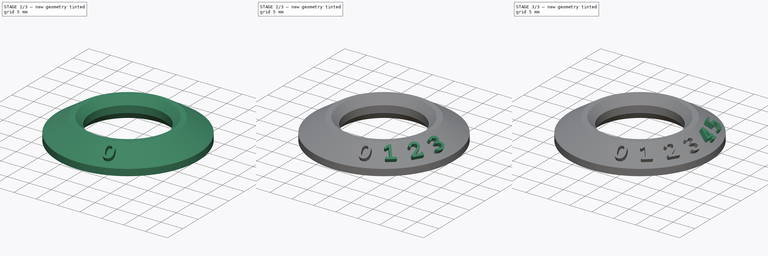
[diagram: build sequence overview — one tinted view per stage of 3, left to right]
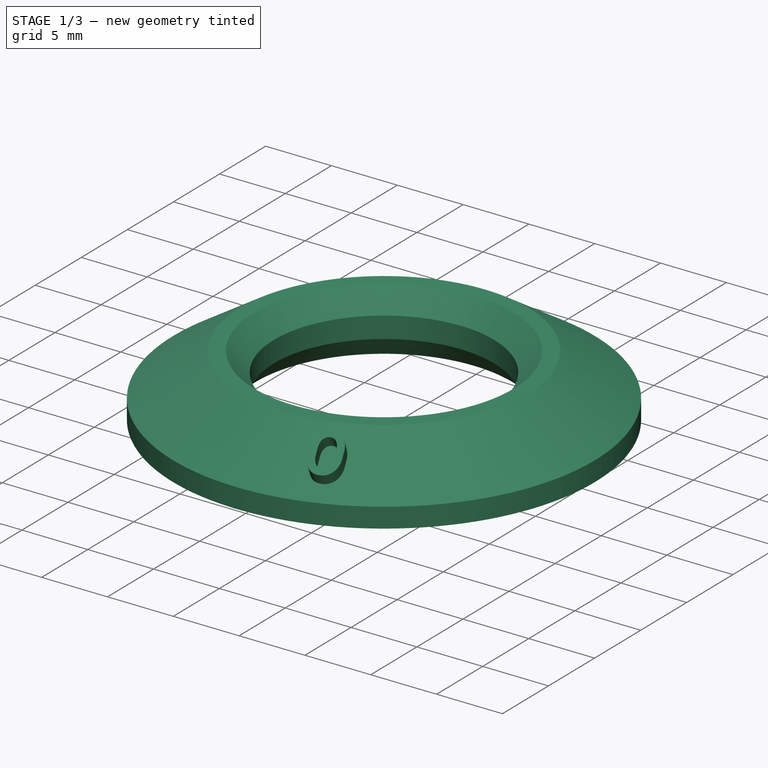
[diagram: stage 1 of 3 — iso view after this stage's code; geometry added in this stage tinted green]
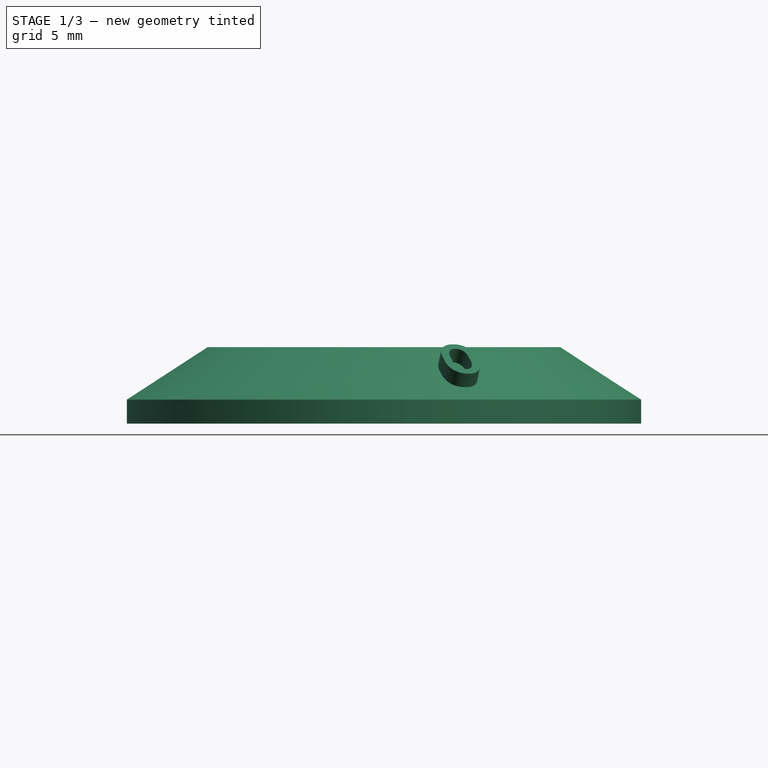
[diagram: stage 1 of 3 — front view after this stage's code; geometry added in this stage tinted green]
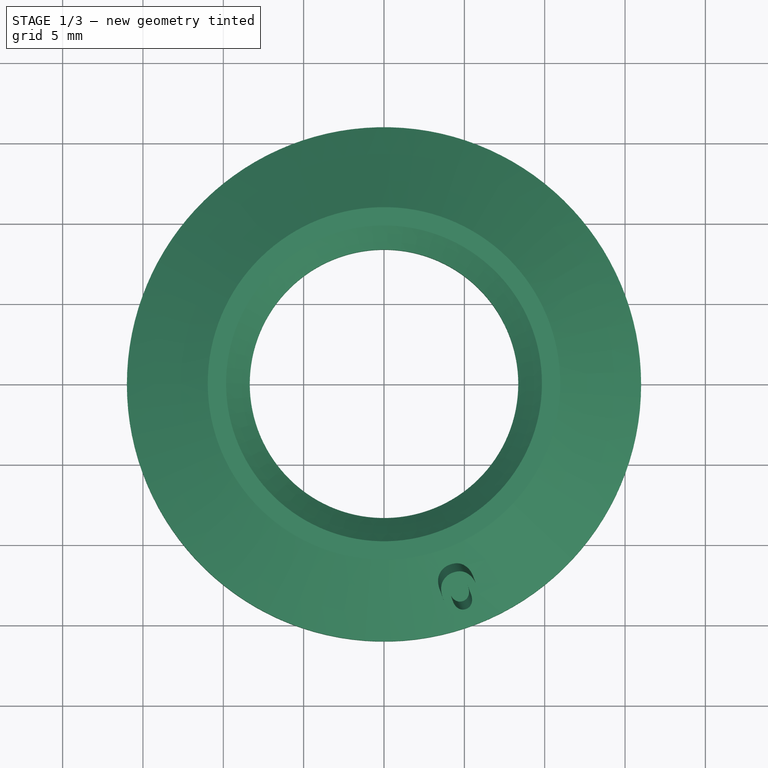
[diagram: stage 1 of 3 — top view after this stage's code; geometry added in this stage tinted green]
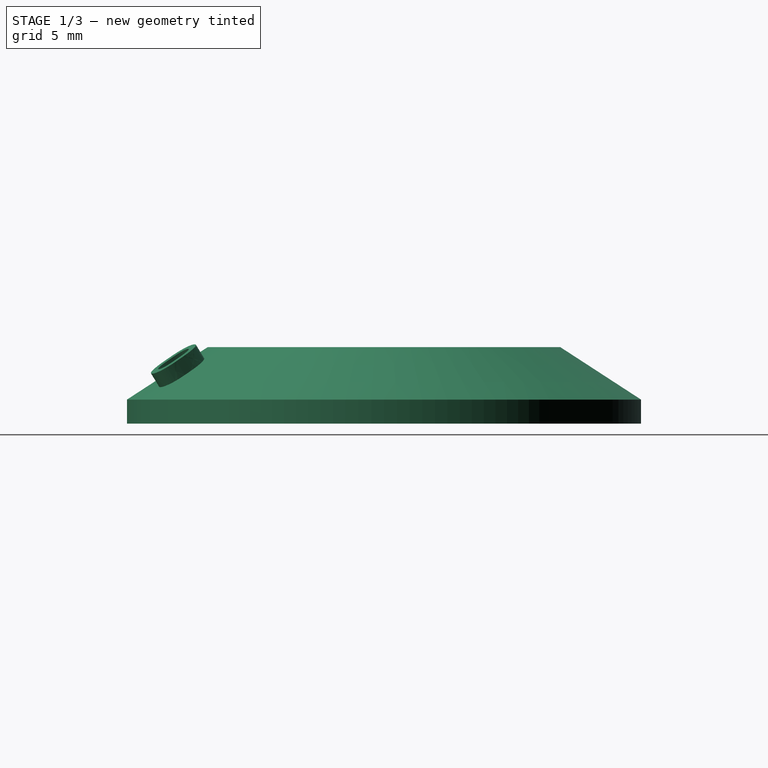
[diagram: stage 1 of 3 — right view after this stage's code; geometry added in this stage tinted green]
FCSTD DOCUMENT  (FreeCAD 1.0R39319 (Git))
Label: text-rotate
License: All rights reserved
LicenseURL: https://en.wikipedia.org/wiki/All_rights_reserved
objects: PartDesign::CoordinateSystem×6, Part::Part2DObjectPython×6, PartDesign::Pad×6, Sketcher::SketchObject×1, PartDesign::Revolution×1, PartDesign::Body×1
note: 36 computed .brp shape members not serialized (recipe doc carries the construction recipe); baked Part::Feature solids carry a one-line shape summary decoded from their .brp

FEATURE [Sketcher::SketchObject] Sketch
  ArcFitTolerance = 1e-06
  AttachmentSupport = -> [XZ_Plane]
  FullyConstrained = true
  MakeInternals = false
  MapMode = 5
  Placement = pos=(0,0,0) rot=(1,0,0;1.5708rad)
  sketch-geometry (9):
    g0: LineSegment StartX=-16 StartY=0 StartZ=0 EndX=-16 EndY=1.5 EndZ=0
    g1: LineSegment StartX=-16 StartY=1.5 StartZ=0 EndX=-10.968 EndY=4.76783 EndZ=0
    g2: LineSegment StartX=-10.968 StartY=4.76783 StartZ=0 EndX=-9.82798 EndY=4.76783 EndZ=0
    g3: LineSegment StartX=-9.82798 StartY=4.76783 StartZ=0 EndX=-8.35607 EndY=3.27001 EndZ=0
    g4: LineSegment StartX=-8.35607 StartY=3.27001 StartZ=0 EndX=-8.35607 EndY=1.66122 EndZ=0
    g5: LineSegment StartX=-8.35607 StartY=1.66122 StartZ=0 EndX=-9.75 EndY=0 EndZ=0
    g6: LineSegment StartX=-9.75 StartY=0 StartZ=0 EndX=-16 EndY=0 EndZ=0
    g7: GeomPoint X=-13.484 Y=3.13392 Z=0
    g8: LineSegment [constr] StartX=-13.484 StartY=3.13392 StartZ=0 EndX=-14.0286 EndY=3.97259 EndZ=0
  constraints (27):
    c: PointOnObject(g0,g-1)
    c: Vertical(g0)
    c: Coincident(g1,g2)
    c: Horizontal(g2)
    c: Coincident(g2,g3)
    c: Coincident(g3,g4)
    c: Vertical(g4)
    c: Coincident(g4,g5)
    c: PointOnObject(g5,g-1)
    c: Coincident(g5,g6)
    c: Coincident(g6,g0)
    c: DistanceX(g6,g6) = 6.25
    c: DistanceX(g0,g-1) = 16
    c: Distance(g3,g3) = 2.1
    c: Angle(g4,g5) = 2.44346
    c: Distance(g1,g1) = 6
    c: Angle(g2,g3) = 2.34747
    c: DistanceX(g2,g2) = 1.14
    c: DistanceY(g0,g0) = 1.5
    c: Angle(g1) = 0.575959
    c: Symmetric(g1,g1,g7)
    c: Symmetric(g1,g0,g7)
    c: Coincident(g8,g7)
    c: Perpendicular(g1,g8)
    c: Distance(g8) = 1
    c: DistanceX(g8) = -14.0286
    c: DistanceY(g8) = 3.97259
FEATURE [PartDesign::Revolution] Revolution
  Angle = 360
  Angle2 = 60
  Axis = (0,2e-16,1)
  Base = (0,0,0)
  Placement = pos=(0,0,0) rot=(1,0,0;1.5708rad)
  Profile = -> Sketch
  ReferenceAxis = -> Sketch [V_Axis]
  Refine = true
  Suppressed = false
  Type = 0
FEATURE [PartDesign::CoordinateSystem] Local_CS
  AttacherType = Attacher::AttachEngine3D
  MapMode = 1
  Placement = pos=(0,0,0) rot=(0,0,1;0.349066rad)
FEATURE [Part::Part2DObjectPython] ShapeString  label="0"  # Draft 2D object (typed FeaturePython)
  AttacherType = Attacher::AttachEngine3D
  AttachmentOffset = pos=(0,-14.03,3.97) rot=(1,0,0;0.575959rad)
  AttachmentSupport = -> [Local_CS]
  FontFile = <path>
  Fuse = false
  Justification = 4
  JustificationReference = 0
  KeepLeftMargin = false
  MakeFace = true
  MapMode = 2
  ObliqueAngle = 0
  Placement = pos=(4.79854,-13.1839,3.97) rot=(0.849584,0.149805,0.505732;0.670956rad)
  ScaleToSize = true
  Size = 3
  String = 0
  Tracking = 0
FEATURE [PartDesign::CoordinateSystem] Local_CS001  label="Local_CS1"
  AttacherType = Attacher::AttachEngine3D
  MapMode = 1
  Placement = pos=(0,0,0) rot=(0,0,1;0.698132rad)
FEATURE [PartDesign::CoordinateSystem] Local_CS002
  AttacherType = Attacher::AttachEngine3D
  MapMode = 1
  Placement = pos=(0,0,0) rot=(0,0,1;1.0472rad)
FEATURE [Part::Part2DObjectPython] ShapeString001  label="1"  # Draft 2D object (typed FeaturePython)
  AttacherType = Attacher::AttachEngine3D
  AttachmentOffset = pos=(0,-14.03,3.97) rot=(1,0,0;0.575959rad)
  AttachmentSupport = -> [Local_CS001]
  FontFile = <path>
  Fuse = false
  Justification = 4
  JustificationReference = 0
  KeepLeftMargin = false
  MakeFace = true
  MapMode = 2
  ObliqueAngle = 0
  Placement = pos=(9.01831,-10.7476,3.97) rot=(0.615191,0.223911,0.755912;0.897474rad)
  ScaleToSize = true
  Size = 3
  String = 1
  Tracking = 0
FEATURE [Part::Part2DObjectPython] ShapeString002  label="2"  # Draft 2D object (typed FeaturePython)
  AttacherType = Attacher::AttachEngine3D
  AttachmentOffset = pos=(0,-14.03,3.97) rot=(1,0,0;0.575959rad)
  AttachmentSupport = -> [Local_CS002]
  FontFile = <path>
  Fuse = false
  Justification = 4
  JustificationReference = 0
  KeepLeftMargin = false
  MakeFace = true
  MapMode = 2
  ObliqueAngle = 0
  Placement = pos=(12.1503,-7.015,3.97) rot=(0.44141,0.254848,0.860354;1.18208rad)
  ScaleToSize = true
  Size = 3
  String = 2
  Tracking = 0
FEATURE [PartDesign::Pad] Pad
  BaseFeature = -> Revolution
  Direction = (0.186278,-0.511793,0.838671)
  Length = 1.2
  Length2 = 10
  Placement = pos=(0,0,0) rot=(1,0,0;1.5708rad)
  Profile = -> ShapeString
  ReferenceAxis = -> ShapeString [N_Axis]
  Refine = true
  Reversed = true
  Suppressed = false
  Type = 0
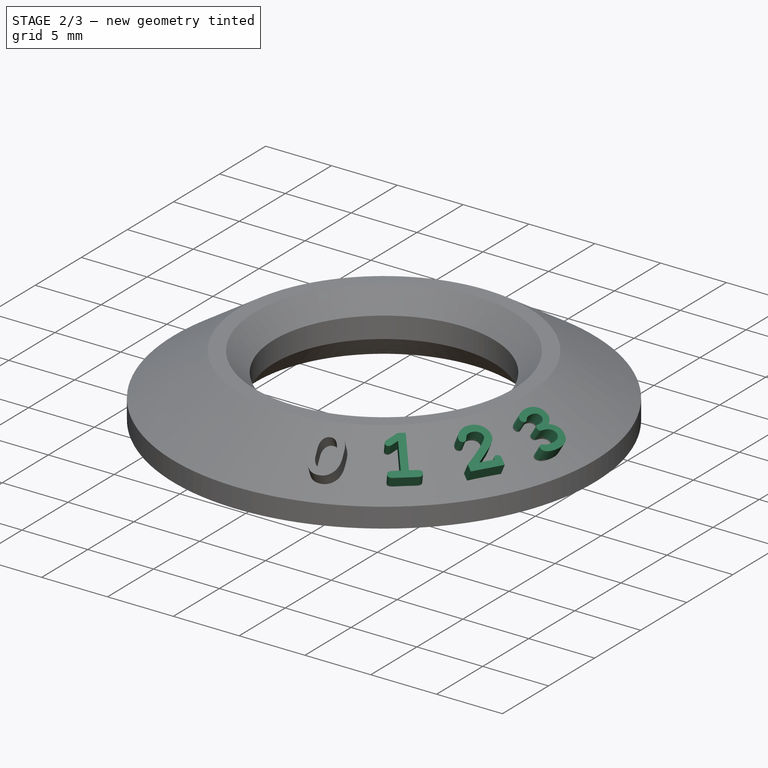
[diagram: stage 2 of 3 — iso view after this stage's code; geometry added in this stage tinted green]
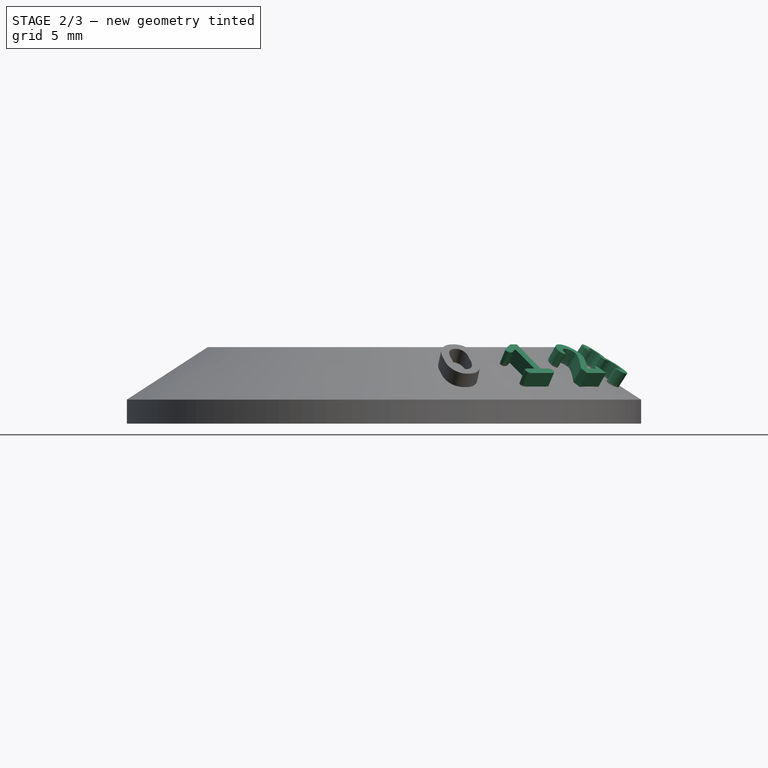
[diagram: stage 2 of 3 — front view after this stage's code; geometry added in this stage tinted green]
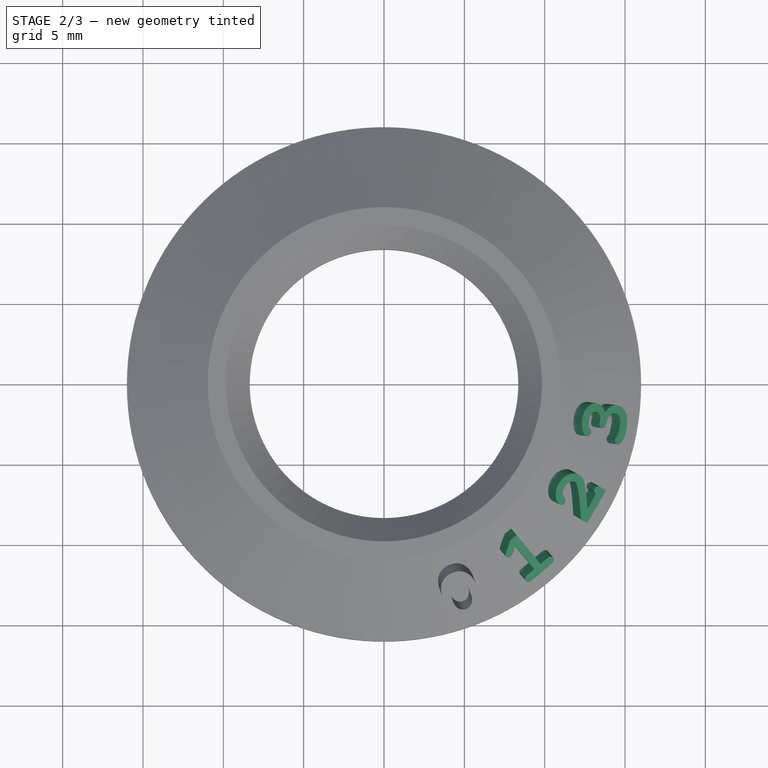
[diagram: stage 2 of 3 — top view after this stage's code; geometry added in this stage tinted green]
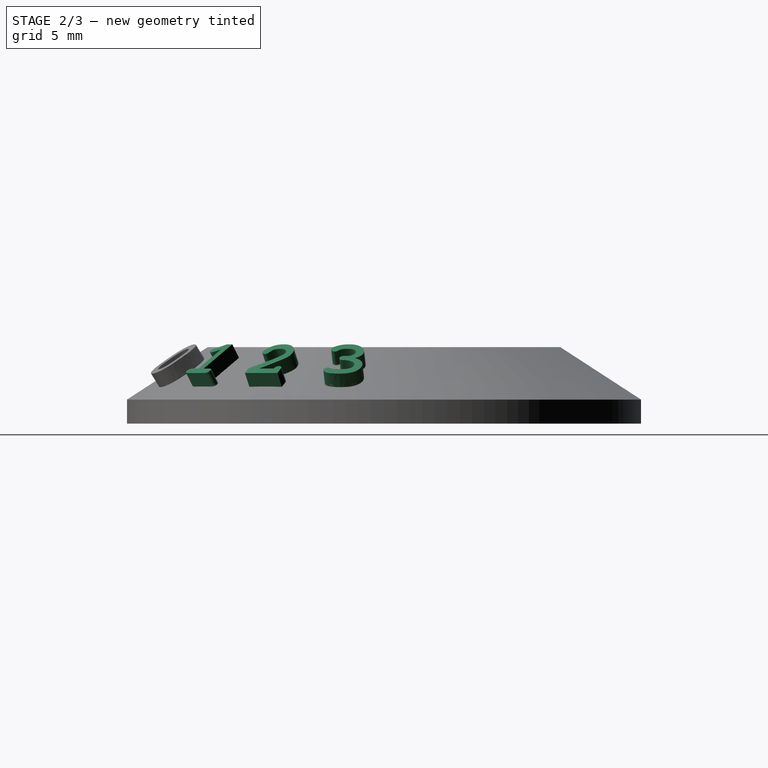
[diagram: stage 2 of 3 — right view after this stage's code; geometry added in this stage tinted green]
FEATURE [PartDesign::Pad] Pad001
  BaseFeature = -> Pad
  Direction = (0.350087,-0.417218,0.838671)
  Length = 1.2
  Length2 = 10
  Placement = pos=(0,0,0) rot=(1,0,0;1.5708rad)
  Profile = -> ShapeString001
  ReferenceAxis = -> ShapeString001 [N_Axis]
  Refine = true
  Reversed = true
  Suppressed = false
  Type = 0
FEATURE [PartDesign::Pad] Pad002
  BaseFeature = -> Pad001
  Direction = (0.471671,-0.27232,0.838671)
  Length = 1.2
  Length2 = 10
  Placement = pos=(0,0,0) rot=(1,0,0;1.5708rad)
  Profile = -> ShapeString002
  ReferenceAxis = -> ShapeString002 [N_Axis]
  Refine = true
  Reversed = true
  Suppressed = false
  Type = 0
FEATURE [PartDesign::CoordinateSystem] Local_CS003
  AttacherType = Attacher::AttachEngine3D
  MapMode = 1
  Placement = pos=(0,0,0) rot=(0,0,1;1.39626rad)
FEATURE [Part::Part2DObjectPython] ShapeString003  label="3"  # Draft 2D object (typed FeaturePython)
  AttacherType = Attacher::AttachEngine3D
  AttachmentOffset = pos=(0,-14.03,3.97) rot=(1,0,0;0.575959rad)
  AttachmentSupport = -> [Local_CS003]
  FontFile = <path>
  Fuse = false
  Justification = 4
  JustificationReference = 0
  KeepLeftMargin = false
  MakeFace = true
  MapMode = 2
  ObliqueAngle = 0
  Placement = pos=(13.8169,-2.43628,3.97) rot=(0.320609,0.269023,0.908205;1.49174rad)
  ScaleToSize = true
  Size = 3
  String = 3
  Tracking = 0
FEATURE [PartDesign::Pad] Pad003
  BaseFeature = -> Pad002
  Direction = (0.536365,-0.0945756,0.838671)
  Length = 1.2
  Length2 = 10
  Placement = pos=(0,0,0) rot=(1,0,0;1.5708rad)
  Profile = -> ShapeString003
  ReferenceAxis = -> ShapeString003 [N_Axis]
  Refine = true
  Reversed = true
  Suppressed = false
  Type = 0
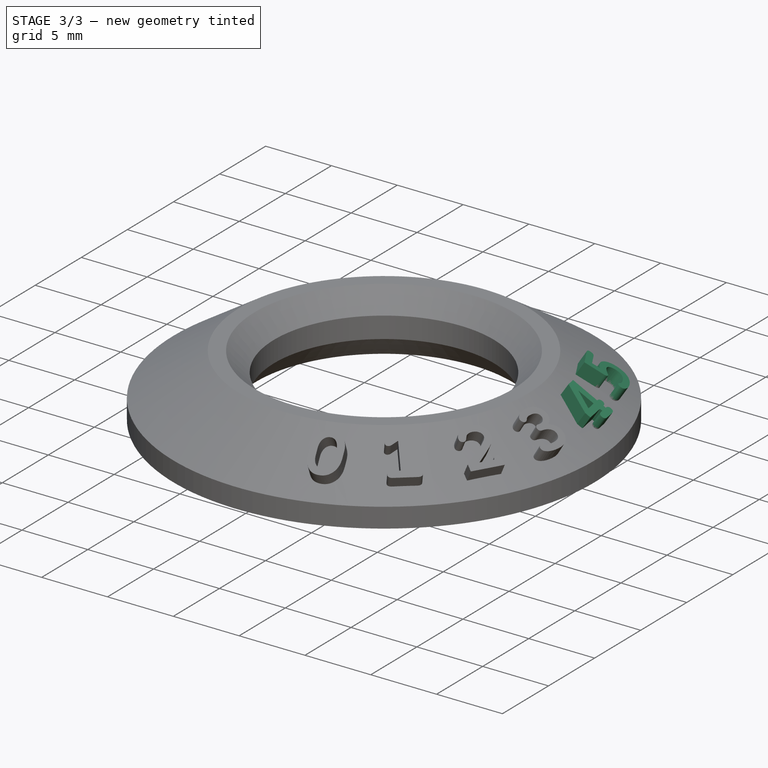
[diagram: stage 3 of 3 — iso view after this stage's code; geometry added in this stage tinted green]
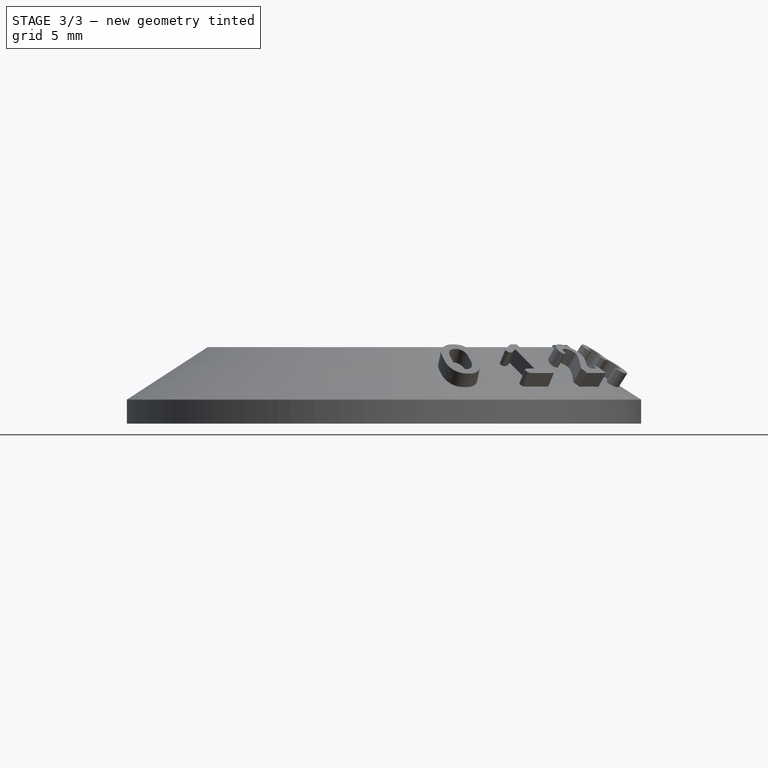
[diagram: stage 3 of 3 — front view after this stage's code; geometry added in this stage tinted green]
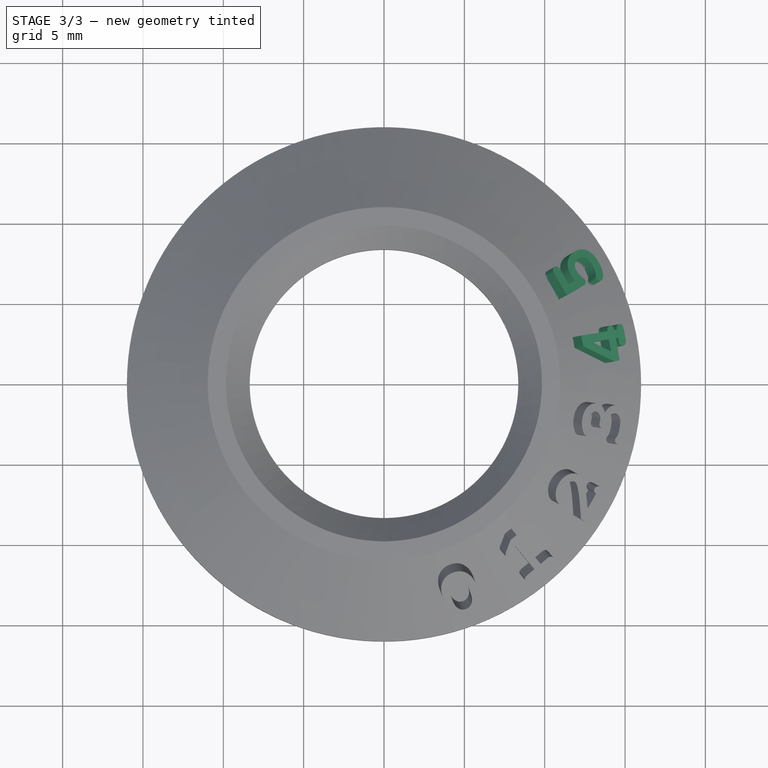
[diagram: stage 3 of 3 — top view after this stage's code; geometry added in this stage tinted green]
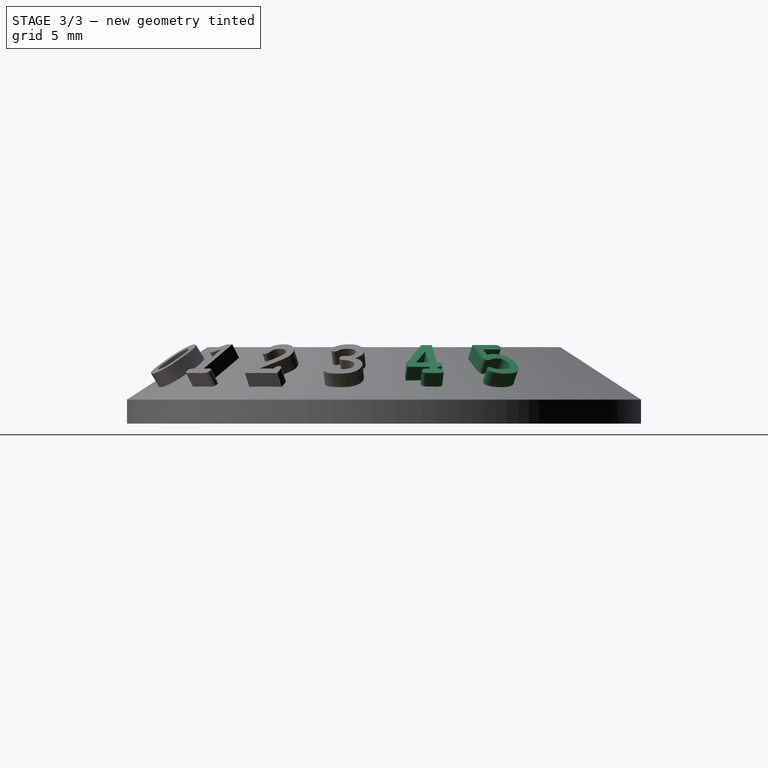
[diagram: stage 3 of 3 — right view after this stage's code; geometry added in this stage tinted green]
FEATURE [PartDesign::CoordinateSystem] Local_CS004
  AttacherType = Attacher::AttachEngine3D
  MapMode = 1
  Placement = pos=(0,0,0) rot=(0,0,1;1.74533rad)
FEATURE [Part::Part2DObjectPython] ShapeString004  label="4"  # Draft 2D object (typed FeaturePython)
  AttacherType = Attacher::AttachEngine3D
  AttachmentOffset = pos=(0,-14.03,3.97) rot=(1,0,0;0.575959rad)
  AttachmentSupport = -> [Local_CS004]
  FontFile = <path>
  Fuse = false
  Justification = 4
  JustificationReference = 0
  KeepLeftMargin = false
  MakeFace = true
  MapMode = 2
  ObliqueAngle = 0
  Placement = pos=(13.8169,2.43628,3.97) rot=(0.231825,0.276278,0.932699;1.81348rad)
  ScaleToSize = true
  Size = 3
  String = 4
  Tracking = 0
FEATURE [PartDesign::Pad] Pad004
  BaseFeature = -> Pad003
  Direction = (0.536365,0.0945756,0.838671)
  Length = 1.2
  Length2 = 10
  Placement = pos=(0,0,0) rot=(1,0,0;1.5708rad)
  Profile = -> ShapeString004
  ReferenceAxis = -> ShapeString004 [N_Axis]
  Refine = true
  Reversed = true
  Suppressed = false
  Type = 0
FEATURE [PartDesign::CoordinateSystem] Local_CS005
  AttacherType = Attacher::AttachEngine3D
  MapMode = 1
  Placement = pos=(0,0,0) rot=(0,0,1;2.0944rad)
FEATURE [Part::Part2DObjectPython] ShapeString005  label="5"  # Draft 2D object (typed FeaturePython)
  AttacherType = Attacher::AttachEngine3D
  AttachmentOffset = pos=(0,-14.03,3.97) rot=(1,0,0;0.575959rad)
  AttachmentSupport = -> [Local_CS005]
  FontFile = <path>
  Fuse = false
  Justification = 4
  JustificationReference = 0
  KeepLeftMargin = false
  MakeFace = true
  MapMode = 2
  ObliqueAngle = 0
  Placement = pos=(12.1503,7.015,3.97) rot=(0.161815,0.280272,0.946184;2.14163rad)
  ScaleToSize = true
  Size = 3
  String = 5
  Tracking = 0
FEATURE [PartDesign::Pad] Pad005
  BaseFeature = -> Pad004
  Direction = (0.471671,0.27232,0.838671)
  Length = 1.2
  Length2 = 10
  Placement = pos=(0,0,0) rot=(1,0,0;1.5708rad)
  Profile = -> ShapeString005
  ReferenceAxis = -> ShapeString005 [N_Axis]
  Refine = true
  Reversed = true
  Suppressed = false
  Type = 0
FEATURE [PartDesign::Body] Body
  AllowCompound = false
  Group = -> [Sketch,Revolution,ShapeString,Local_CS,Local_CS001,Local_CS002,ShapeString001,ShapeString002,Pad,Pad001,Pad002,ShapeString003,Local_CS003,Pad003,Local_CS004,ShapeString004,Pad004,Local_CS005,ShapeString005,Pad005]
  Origin = -> Origin
  Tip = -> Pad005
note: 6 file-system paths scrubbed to <path> (originals preserved in the JSON sidecar)
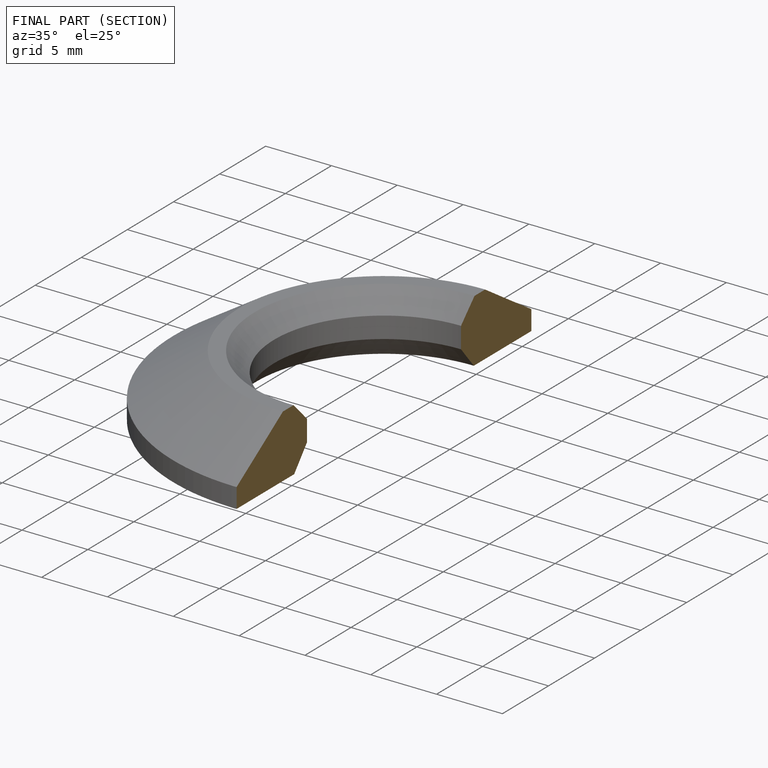
[diagram: finished part — half-section view (interior)]
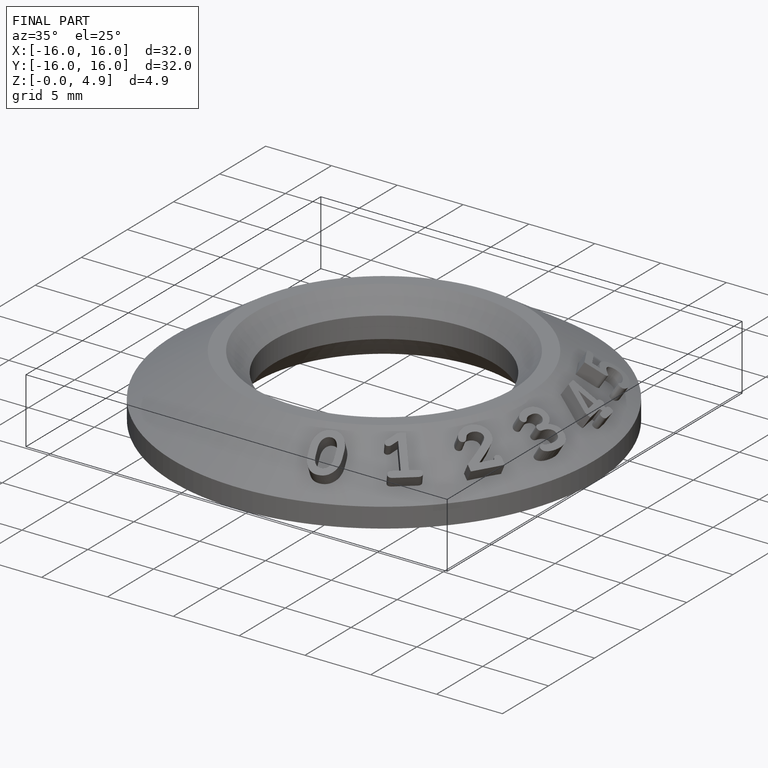
[diagram: finished part — iso view with bounding-box wireframe]
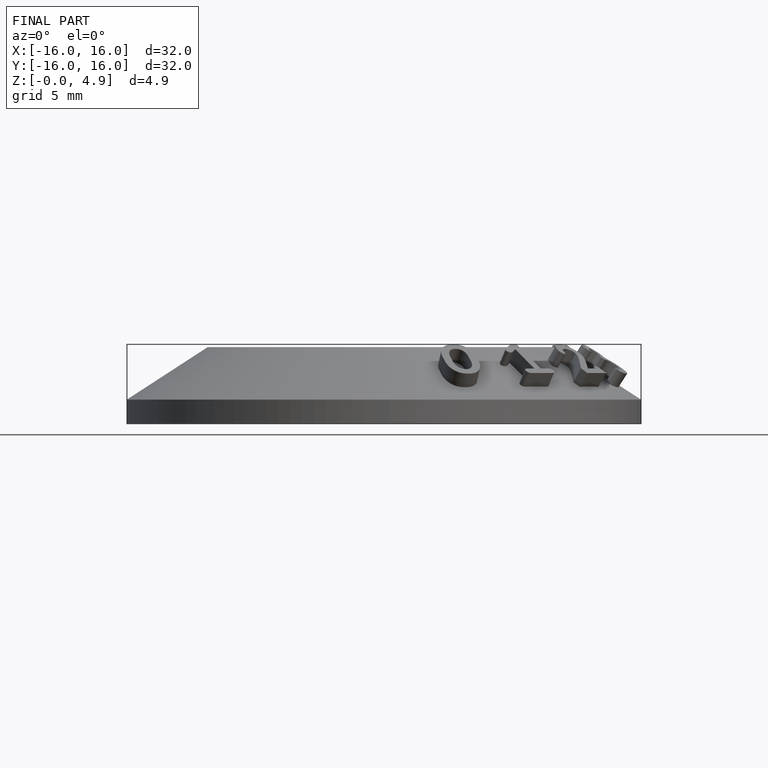
[diagram: finished part — front view with bounding-box wireframe]
